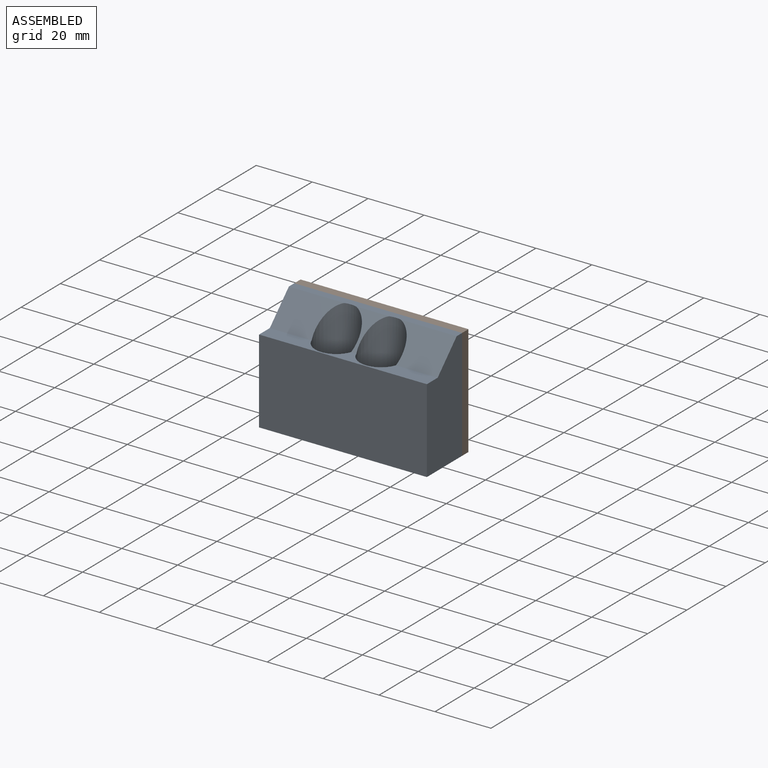
[diagram: assembled view]
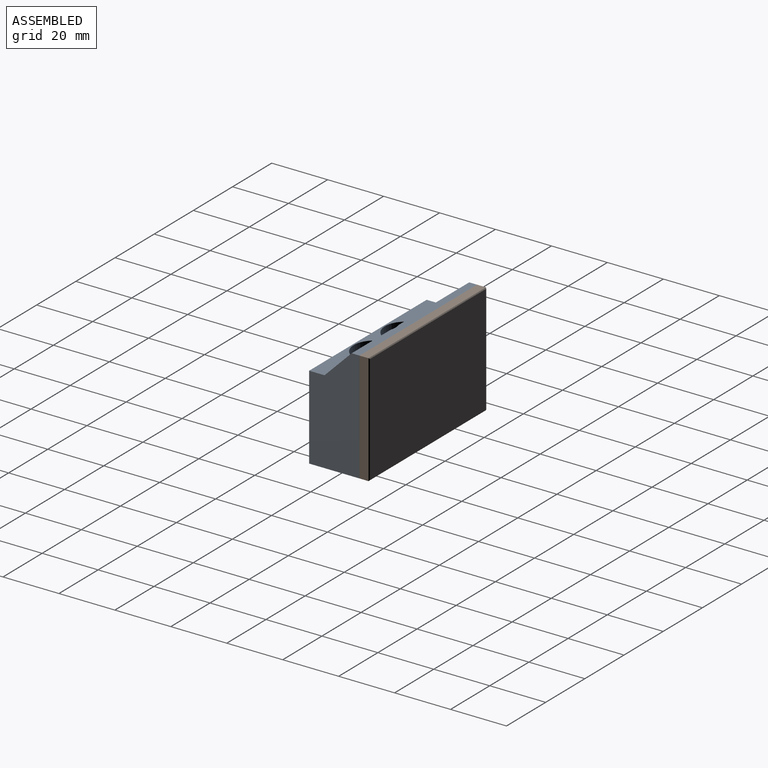
[diagram: assembled view, second angle]
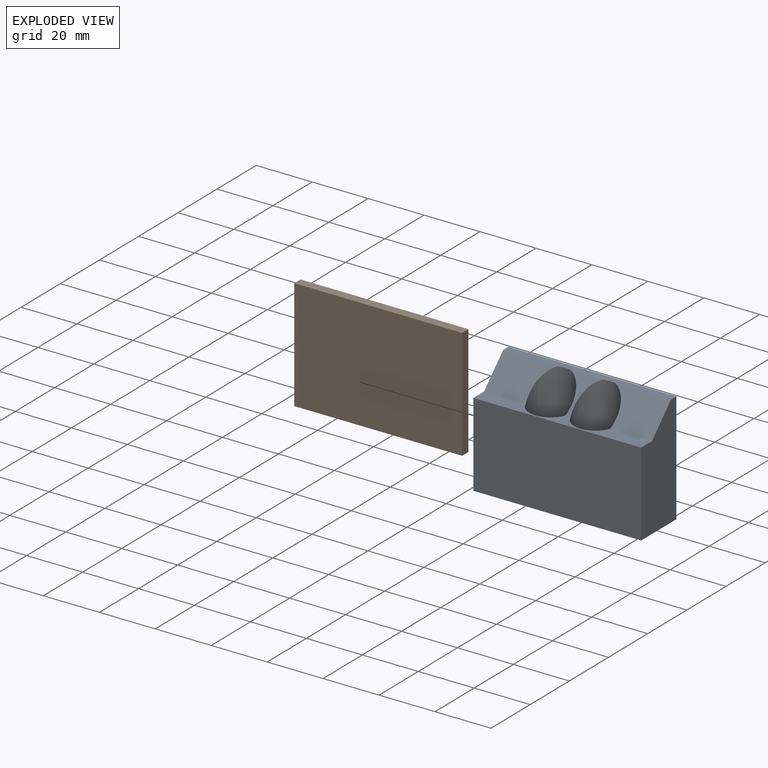
[diagram: exploded view]
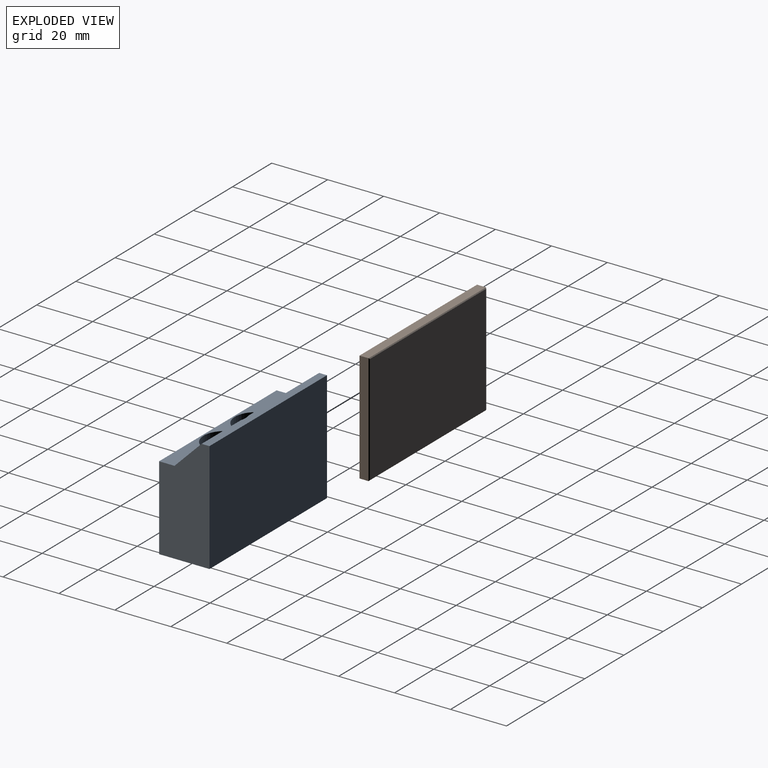
[diagram: exploded view, second angle]
ASSEMBLY  parts=2 mates=3
PART A: 16 faces, bbox 60x18x39.7 mm
  f0: plane 60x2.8mm, normal (0,0,1), area 166.3mm2, adj f1,f2,f3,f5,f8,f9,f12,f15
  f1: plane 19.9x9.7mm, normal (0,-0.71,0.71), area 213.9mm2, adj f0,f6,f8,f15
  f2: plane 11.8x9.7mm, normal (0,-0.71,0.71), area 43.7mm2, adj f0,f6,f12,f15
  f3: plane 19.9x9.7mm, normal (0,-0.71,0.71), area 213.9mm2, adj f0,f6,f9,f12
  f4: plane 60x18mm, normal (0,0,-1), area 952.8mm2, adj f5,f7,f8,f9,f10,f13
  f5: plane 60x39.7mm, normal (0,1,0), area 2382mm2, adj f0,f4,f8,f9
  f6: plane 60x5.5mm, normal (0,0,1), area 226.9mm2, adj f1,f2,f3,f7,f8,f9,f12,f15
  f7: plane 60x30mm, normal (0,-1,0), area 1800mm2, adj f4,f6,f8,f9
  f8: plane 39.7x18mm, normal (1,0,0), area 614.2mm2, adj f0,f1,f4,f5,f6,f7
  f9: plane 39.7x18mm, normal (-1,0,0), area 614.2mm2, adj f0,f3,f4,f5,f6,f7
  f10: cylinder r=4.5mm len=20.9mm, axis (0,0,1), area 590.9mm2, adj f4,f11
  f11: plane 15x15mm, normal (0,0,1), area 113.1mm2, adj f10,f12
  f12: cylinder r=7.5mm len=18.8mm, axis (0,0,1), area 605.7mm2, adj f0,f2,f3,f6,f11
  f13: cylinder r=4.5mm len=20.9mm, axis (0,0,1), area 590.9mm2, adj f4,f14
  f14: plane 15x15mm, normal (0,0,1), area 113.1mm2, adj f13,f15
  f15: cylinder r=7.5mm len=18.8mm, axis (0,0,1), area 605.7mm2, adj f0,f1,f2,f6,f14
PART B: 10 faces, bbox 60x3.5x39.7 mm
  f0: plane 60x3.2mm, normal (0,0,1), area 192mm2, adj f1,f3,f5,f7
  f1: plane 39.7x3.2mm, normal (-1,0,0), area 127mm2, adj f0,f2,f5,f6
  f2: plane 60x3.2mm, normal (0,0,-1), area 192mm2, adj f1,f3,f5,f8
  f3: plane 39.7x3.2mm, normal (1,0,0), area 127mm2, adj f0,f2,f5,f9
  f4: plane 59.4x39.1mm, normal (0,-1,0), area 2322.5mm2, adj f6,f7,f8,f9
  f5: plane 60x39.7mm, normal (0,1,0), area 2382mm2, adj f0,f1,f2,f3
  f6: plane 39.7x0.3mm, normal (-0.71,-0.71,0), area 16.7mm2, adj f1,f4,f7,f8
  f7: plane 60x0.3mm, normal (0,-0.71,0.71), area 25.3mm2, adj f0,f4,f6,f9
  f8: plane 60x0.3mm, normal (0,-0.71,-0.71), area 25.3mm2, adj f2,f4,f6,f9
  f9: plane 39.7x0.3mm, normal (0.71,-0.71,0), area 16.7mm2, adj f3,f4,f7,f8
PLACE A t=(-43.78,-12.21,1.31)mm
PLACE B rot(axis=(1,0,0),180deg) t=(-43.78,-12.21,41.01)mm
MATE planar B.f3 <-> A.f8  axis (1,0,0) through (-13.78,-10.61,21.16)mm
MATE planar B.f2 <-> A.f0  axis (0,0,1) through (-43.78,-10.61,41.01)mm
MATE planar B.f5 <-> A.f5  axis (0,-1,0) through (-43.78,-12.21,21.16)mm
